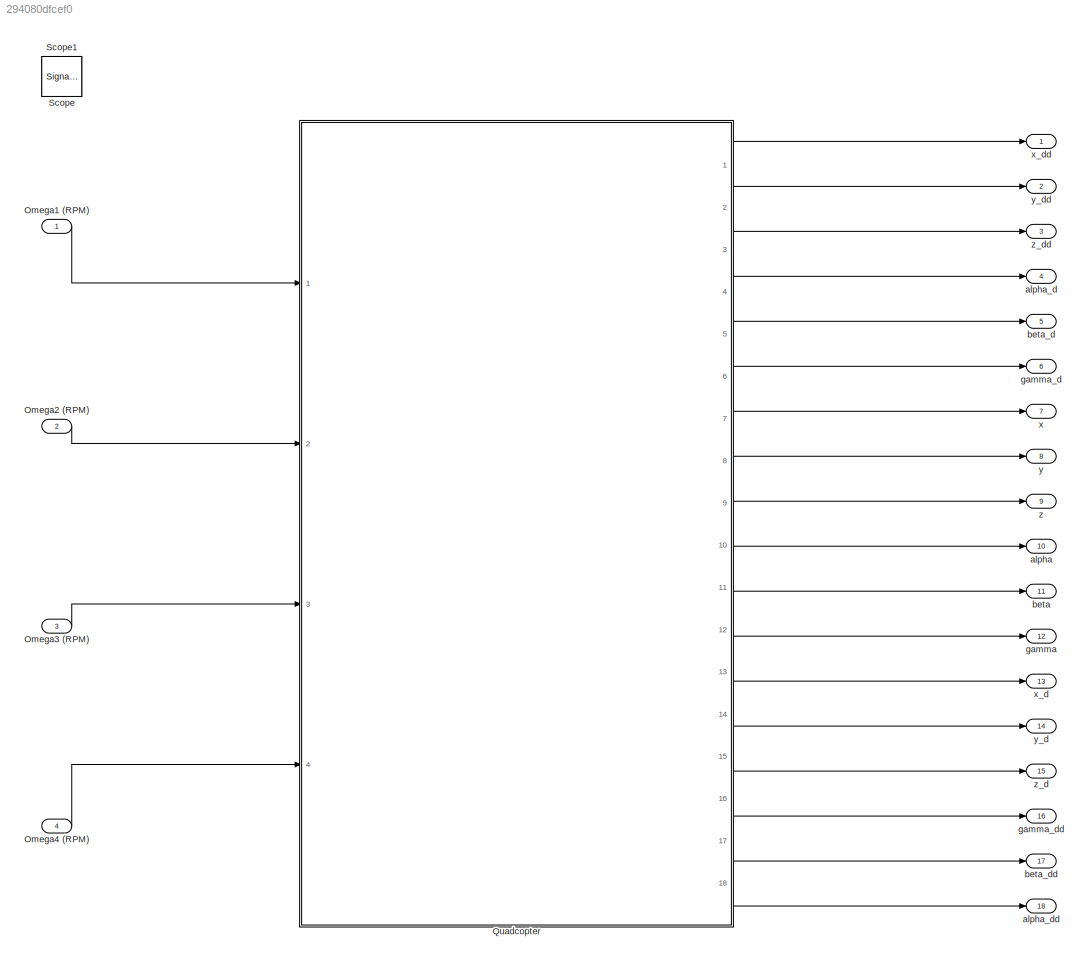
MODEL slx_294080dfcef0
KIND model
BLOCK [Inport] Omega1 (RPM)
  IconDisplay = Port number
BLOCK [Inport] Omega2 (RPM)
  IconDisplay = Port number
  Port = 2
BLOCK [Inport] Omega3 (RPM)
  IconDisplay = Port number
  Port = 3
BLOCK [Inport] Omega4 (RPM)
  IconDisplay = Port number
  Port = 4
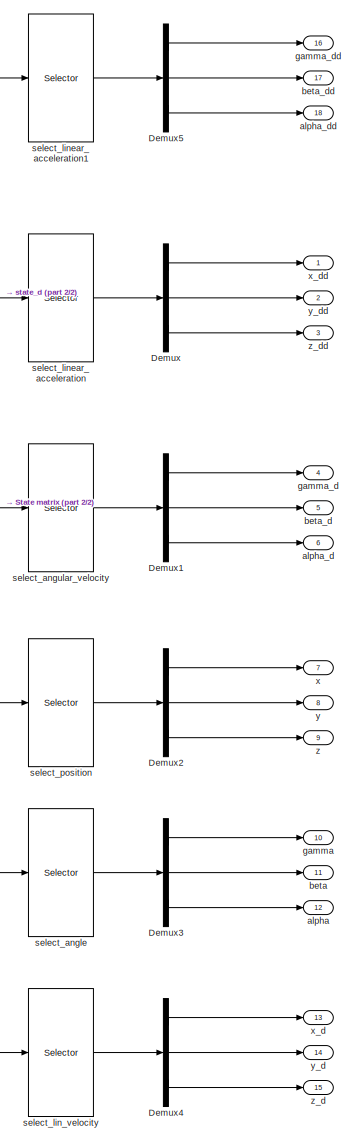
[diagram: Quadcopter - part 1/2, right side, full height]
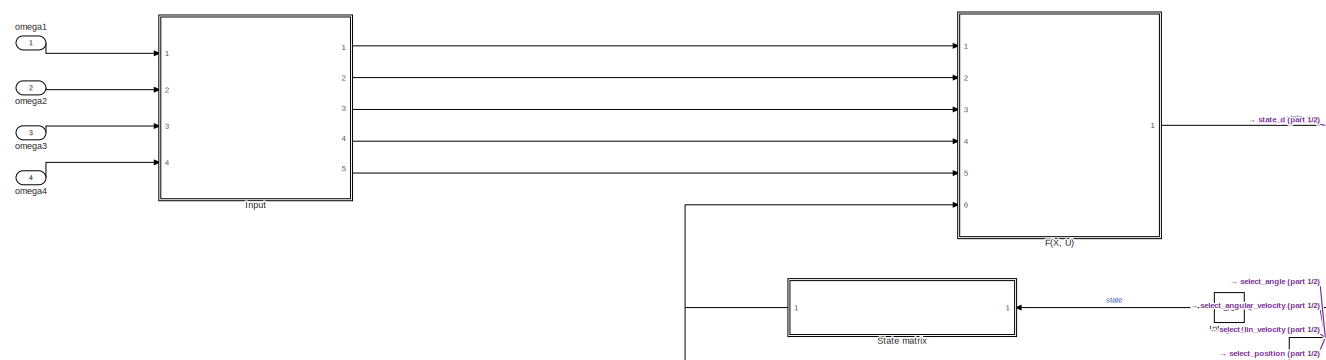
[diagram: Quadcopter - part 2/2, top left region]
BLOCK [SubSystem] Quadcopter
  Ports = [4, 18]
  RequestExecContextInheritance = off
BLOCK [Demux] Quadcopter/Demux
  DisplayOption = bar
  Outputs = [1 1 1]
  Ports = [1, 3]
BLOCK [Demux] Quadcopter/Demux1
  DisplayOption = bar
  Outputs = [1 1 1]
  Ports = [1, 3]
BLOCK [Demux] Quadcopter/Demux2
  DisplayOption = bar
  Outputs = [1 1 1]
  Ports = [1, 3]
BLOCK [Demux] Quadcopter/Demux3
  DisplayOption = bar
  Outputs = [1 1 1]
  Ports = [1, 3]
BLOCK [Demux] Quadcopter/Demux4
  DisplayOption = bar
  Outputs = [1 1 1]
  Ports = [1, 3]
BLOCK [Demux] Quadcopter/Demux5
  DisplayOption = bar
  Outputs = [1 1 1]
  Ports = [1, 3]
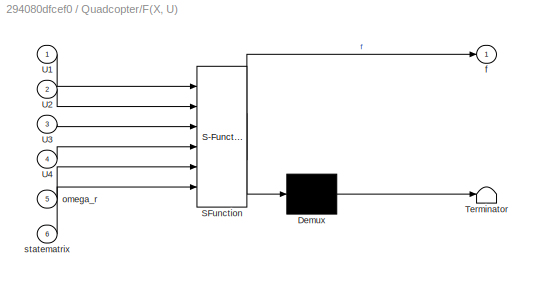
BLOCK [SubSystem] Quadcopter/F(X, U)
  ErrorFcn = Stateflow.Translate.translate
  PermitHierarchicalResolution = ExplicitOnly
  Ports = [6, 1]
  RequestExecContextInheritance = off
  SFBlockType = MATLAB Function
  TreatAsAtomicUnit = on
BLOCK [Demux] Quadcopter/F(X, U)/ Demux 
  Outputs = 1
  Ports = [1, 1]
BLOCK [S-Function] Quadcopter/F(X, U)/ SFunction 
  EnableBusSupport = on
  FunctionName = sf_sfun
  PortCounts = [6 2]
  Ports = [6, 2]
  Tag = Stateflow S-Function quadcopter2 2
BLOCK [Terminator] Quadcopter/F(X, U)/ Terminator 
BLOCK [Inport] Quadcopter/F(X, U)/U1
  IconDisplay = Port number
BLOCK [Inport] Quadcopter/F(X, U)/U2
  IconDisplay = Port number
  Port = 2
BLOCK [Inport] Quadcopter/F(X, U)/U3
  IconDisplay = Port number
  Port = 3
BLOCK [Inport] Quadcopter/F(X, U)/U4
  IconDisplay = Port number
  Port = 4
BLOCK [Outport] Quadcopter/F(X, U)/f
  IconDisplay = Port number
BLOCK [Inport] Quadcopter/F(X, U)/omega_r
  IconDisplay = Port number
  Port = 5
BLOCK [Inport] Quadcopter/F(X, U)/statematrix
  IconDisplay = Port number
  Port = 6
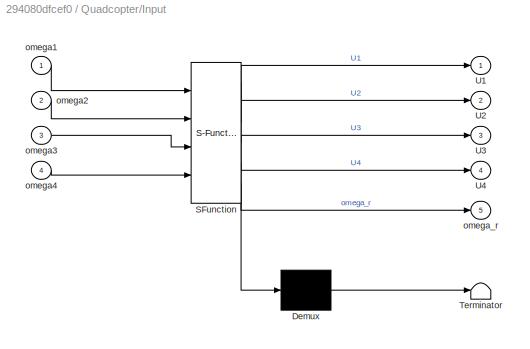
BLOCK [SubSystem] Quadcopter/Input
  ErrorFcn = Stateflow.Translate.translate
  PermitHierarchicalResolution = ExplicitOnly
  Ports = [4, 5]
  RequestExecContextInheritance = off
  SFBlockType = MATLAB Function
  TreatAsAtomicUnit = on
BLOCK [Demux] Quadcopter/Input/ Demux 
  Outputs = 1
  Ports = [1, 1]
BLOCK [S-Function] Quadcopter/Input/ SFunction 
  EnableBusSupport = on
  FunctionName = sf_sfun
  PortCounts = [4 6]
  Ports = [4, 6]
  Tag = Stateflow S-Function quadcopter2 3
BLOCK [Terminator] Quadcopter/Input/ Terminator 
BLOCK [Outport] Quadcopter/Input/U1
  IconDisplay = Port number
BLOCK [Outport] Quadcopter/Input/U2
  IconDisplay = Port number
  Port = 2
BLOCK [Outport] Quadcopter/Input/U3
  IconDisplay = Port number
  Port = 3
BLOCK [Outport] Quadcopter/Input/U4
  IconDisplay = Port number
  Port = 4
BLOCK [Inport] Quadcopter/Input/omega1
  IconDisplay = Port number
BLOCK [Inport] Quadcopter/Input/omega2
  IconDisplay = Port number
  Port = 2
BLOCK [Inport] Quadcopter/Input/omega3
  IconDisplay = Port number
  Port = 3
BLOCK [Inport] Quadcopter/Input/omega4
  IconDisplay = Port number
  Port = 4
BLOCK [Outport] Quadcopter/Input/omega_r
  IconDisplay = Port number
  Port = 5
BLOCK [Integrator] Quadcopter/Integrator
  Ports = [1, 1]
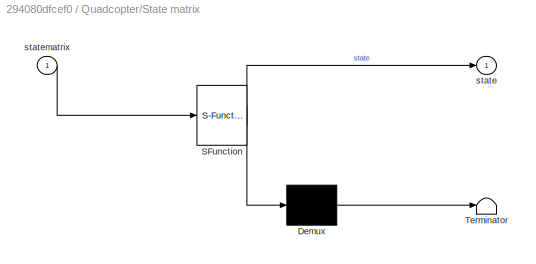
BLOCK [SubSystem] Quadcopter/State matrix
  ErrorFcn = Stateflow.Translate.translate
  PermitHierarchicalResolution = ExplicitOnly
  Ports = [1, 1]
  RequestExecContextInheritance = off
  SFBlockType = MATLAB Function
  TreatAsAtomicUnit = on
BLOCK [Demux] Quadcopter/State matrix/ Demux 
  Outputs = 1
  Ports = [1, 1]
BLOCK [S-Function] Quadcopter/State matrix/ SFunction 
  EnableBusSupport = on
  FunctionName = sf_sfun
  PortCounts = [1 2]
  Ports = [1, 2]
  Tag = Stateflow S-Function quadcopter2 1
BLOCK [Terminator] Quadcopter/State matrix/ Terminator 
BLOCK [Outport] Quadcopter/State matrix/state
  IconDisplay = Port number
BLOCK [Inport] Quadcopter/State matrix/statematrix
  IconDisplay = Port number
BLOCK [Outport] Quadcopter/alpha
  IconDisplay = Port number
  Port = 12
BLOCK [Outport] Quadcopter/alpha_d
  IconDisplay = Port number
  Port = 6
BLOCK [Outport] Quadcopter/alpha_dd
  IconDisplay = Port number
  Port = 18
BLOCK [Outport] Quadcopter/beta
  IconDisplay = Port number
  Port = 11
BLOCK [Outport] Quadcopter/beta_d
  IconDisplay = Port number
  Port = 5
BLOCK [Outport] Quadcopter/beta_dd
  IconDisplay = Port number
  Port = 17
BLOCK [Outport] Quadcopter/gamma
  IconDisplay = Port number
  Port = 10
BLOCK [Outport] Quadcopter/gamma_d
  IconDisplay = Port number
  Port = 4
BLOCK [Outport] Quadcopter/gamma_dd
  IconDisplay = Port number
  Port = 16
BLOCK [Inport] Quadcopter/omega1
  IconDisplay = Port number
BLOCK [Inport] Quadcopter/omega2
  IconDisplay = Port number
  Port = 2
BLOCK [Inport] Quadcopter/omega3
  IconDisplay = Port number
  Port = 3
BLOCK [Inport] Quadcopter/omega4
  IconDisplay = Port number
  Port = 4
BLOCK [Selector] Quadcopter/select_angle
  Indices = [7 9 11]
  InputPortWidth = 12
  Ports = [1, 1]
BLOCK [Selector] Quadcopter/select_angular_velocity
  Indices = [8 10 12]
  InputPortWidth = 12
  Ports = [1, 1]
BLOCK [Selector] Quadcopter/select_lin_velocity
  Indices = [2 4 6]
  InputPortWidth = 12
  Ports = [1, 1]
BLOCK [Selector] Quadcopter/select_linear_acceleration
  Indices = [2 4 6]
  InputPortWidth = 12
  Ports = [1, 1]
BLOCK [Selector] Quadcopter/select_linear_acceleration1
  Indices = [8 10 12]
  InputPortWidth = 12
  Ports = [1, 1]
BLOCK [Selector] Quadcopter/select_position
  Indices = [1 3 5]
  InputPortWidth = 12
  Ports = [1, 1]
BLOCK [Outport] Quadcopter/x
  IconDisplay = Port number
  Port = 7
BLOCK [Outport] Quadcopter/x_d
  IconDisplay = Port number
  Port = 13
BLOCK [Outport] Quadcopter/x_dd
  IconDisplay = Port number
BLOCK [Outport] Quadcopter/y
  IconDisplay = Port number
  Port = 8
BLOCK [Outport] Quadcopter/y_d
  IconDisplay = Port number
  Port = 14
BLOCK [Outport] Quadcopter/y_dd
  IconDisplay = Port number
  Port = 2
BLOCK [Outport] Quadcopter/z
  IconDisplay = Port number
  Port = 9
BLOCK [Outport] Quadcopter/z_d
  IconDisplay = Port number
  Port = 15
BLOCK [Outport] Quadcopter/z_dd
  IconDisplay = Port number
  Port = 3
BLOCK [SignalViewerScope] Scope
  IOType = viewer
  LegendLocations = 0.95792     0.94537       0.035    0.031952
  MaxDataPoints = 7500
  NumInputPorts = 1
  Ports = []
  RefreshTime = 0.035000
  ShowDataMarkers = off
  ShowLegends = on
  YMax = 2
BLOCK [SignalViewerScope] Scope1
  IOType = viewer
  LegendLocations = 0.81526     0.79045       0.035    0.041641
  MaxDataPoints = 7500
  NumInputPorts = 1
  Ports = []
  RefreshTime = 0.035000
  SaveName = ScopeData1
  ShowDataMarkers = off
  ShowLegends = on
BLOCK [Outport] alpha
  IconDisplay = Port number
  Port = 10
BLOCK [Outport] alpha_d
  IconDisplay = Port number
  Port = 4
BLOCK [Outport] alpha_dd
  IconDisplay = Port number
  Port = 18
BLOCK [Outport] beta
  IconDisplay = Port number
  Port = 11
BLOCK [Outport] beta_d
  IconDisplay = Port number
  Port = 5
BLOCK [Outport] beta_dd
  IconDisplay = Port number
  Port = 17
BLOCK [Outport] gamma
  IconDisplay = Port number
  Port = 12
BLOCK [Outport] gamma_d
  IconDisplay = Port number
  Port = 6
BLOCK [Outport] gamma_dd
  IconDisplay = Port number
  Port = 16
BLOCK [Outport] x
  IconDisplay = Port number
  Port = 7
BLOCK [Outport] x_d
  IconDisplay = Port number
  Port = 13
BLOCK [Outport] x_dd
  IconDisplay = Port number
BLOCK [Outport] y
  IconDisplay = Port number
  Port = 8
BLOCK [Outport] y_d
  IconDisplay = Port number
  Port = 14
BLOCK [Outport] y_dd
  IconDisplay = Port number
  Port = 2
BLOCK [Outport] z
  IconDisplay = Port number
  Port = 9
BLOCK [Outport] z_d
  IconDisplay = Port number
  Port = 15
BLOCK [Outport] z_dd
  IconDisplay = Port number
  Port = 3
LINE Omega1 (RPM):1 -> Quadcopter:1
LINE Omega2 (RPM):1 -> Quadcopter:2
LINE Omega3 (RPM):1 -> Quadcopter:3
LINE Omega4 (RPM):1 -> Quadcopter:4
LINE Quadcopter/Demux1:1 -> Quadcopter/gamma_d:1
LINE Quadcopter/Demux1:2 -> Quadcopter/beta_d:1
LINE Quadcopter/Demux1:3 -> Quadcopter/alpha_d:1
LINE Quadcopter/Demux2:1 -> Quadcopter/x:1
LINE Quadcopter/Demux2:2 -> Quadcopter/y:1
LINE Quadcopter/Demux2:3 -> Quadcopter/z:1
LINE Quadcopter/Demux3:1 -> Quadcopter/gamma:1
LINE Quadcopter/Demux3:2 -> Quadcopter/beta:1
LINE Quadcopter/Demux3:3 -> Quadcopter/alpha:1
LINE Quadcopter/Demux4:1 -> Quadcopter/x_d:1
LINE Quadcopter/Demux4:2 -> Quadcopter/y_d:1
LINE Quadcopter/Demux4:3 -> Quadcopter/z_d:1
LINE Quadcopter/Demux5:1 -> Quadcopter/gamma_dd:1
LINE Quadcopter/Demux5:2 -> Quadcopter/beta_dd:1
LINE Quadcopter/Demux5:3 -> Quadcopter/alpha_dd:1
LINE Quadcopter/Demux:1 -> Quadcopter/x_dd:1
LINE Quadcopter/Demux:2 -> Quadcopter/y_dd:1
LINE Quadcopter/Demux:3 -> Quadcopter/z_dd:1
NET Quadcopter/F(X, U):1 -> Quadcopter/Integrator:1, Quadcopter/select_linear_acceleration1:1, Quadcopter/select_linear_acceleration:1
LINE Quadcopter/Input:1 -> Quadcopter/F(X, U):1
LINE Quadcopter/Input:2 -> Quadcopter/F(X, U):2
LINE Quadcopter/Input:3 -> Quadcopter/F(X, U):3
LINE Quadcopter/Input:4 -> Quadcopter/F(X, U):4
LINE Quadcopter/Input:5 -> Quadcopter/F(X, U):5
LINE Quadcopter/Integrator:1 -> Quadcopter/State matrix:1
NET Quadcopter/State matrix:1 -> Quadcopter/F(X, U):6, Quadcopter/select_angle:1, Quadcopter/select_angular_velocity:1, Quadcopter/select_lin_velocity:1, Quadcopter/select_position:1
LINE Quadcopter/omega1:1 -> Quadcopter/Input:1
LINE Quadcopter/omega2:1 -> Quadcopter/Input:2
LINE Quadcopter/omega3:1 -> Quadcopter/Input:3
LINE Quadcopter/omega4:1 -> Quadcopter/Input:4
LINE Quadcopter/select_angle:1 -> Quadcopter/Demux3:1
LINE Quadcopter/select_angular_velocity:1 -> Quadcopter/Demux1:1
LINE Quadcopter/select_lin_velocity:1 -> Quadcopter/Demux4:1
LINE Quadcopter/select_linear_acceleration1:1 -> Quadcopter/Demux5:1
LINE Quadcopter/select_linear_acceleration:1 -> Quadcopter/Demux:1
LINE Quadcopter/select_position:1 -> Quadcopter/Demux2:1
LINE Quadcopter:1 -> x_dd:1
LINE Quadcopter:10 -> alpha:1
LINE Quadcopter:11 -> beta:1
LINE Quadcopter:12 -> gamma:1
LINE Quadcopter:13 -> x_d:1
LINE Quadcopter:14 -> y_d:1
LINE Quadcopter:15 -> z_d:1
LINE Quadcopter:16 -> gamma_dd:1
LINE Quadcopter:17 -> beta_dd:1
LINE Quadcopter:18 -> alpha_dd:1
LINE Quadcopter:2 -> y_dd:1
LINE Quadcopter:3 -> z_dd:1
LINE Quadcopter:4 -> alpha_d:1
LINE Quadcopter:5 -> beta_d:1
LINE Quadcopter:6 -> gamma_d:1
LINE Quadcopter:7 -> x:1
LINE Quadcopter:8 -> y:1
LINE Quadcopter:9 -> z:1
note: NET lines group one-source signal fan-out (src -> all destinations, sorted); 1:1 wires keep LINE
